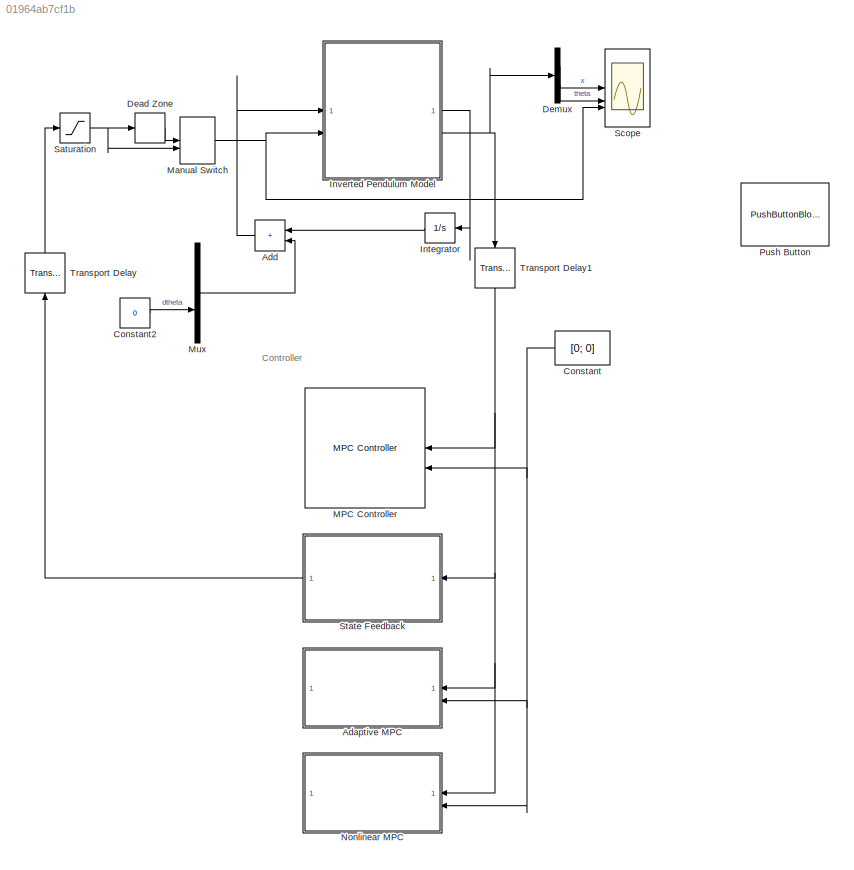
MODEL slx_01964ab7cf1b
KIND model
CONFIG AbsTol = auto
CONFIG EnableMultiTasking = off
CONFIG FixedStep = 1.0e-5
CONFIG MaxStep = auto
CONFIG MinStep = auto
CONFIG RelTol = 1e-3
CONFIG SampleTimeConstraint = Unconstrained
CONFIG SolverName = FixedStepAuto
CONFIG StartTime = 0.0
CONFIG StopTime = 5
BLOCK [ModelReference] Adaptive MPC
  Commented = on
  ModelNameDialog = adaptive_mpc_controller.slx
  ModelReferenceVersion = 1.25
  NameLocation = top
BLOCK [Sum] Add
  IconShape = rectangular
  NameLocation = top
BLOCK [Constant] Constant
  NameLocation = top
  Value = [0; 0]
BLOCK [Constant] Constant2
  Value = 0
BLOCK [DeadZone] Dead Zone
  LowerValue = -p_Dz
  UpperValue = p_Dz
BLOCK [Demux] Demux
  Outputs = 2
BLOCK [Integrator] Integrator
  InitialCondition = [0; 0; 0.01; 0; 0]
  NameLocation = top
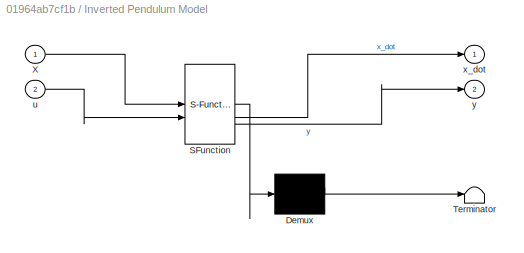
BLOCK [SubSystem] Inverted Pendulum Model
  ErrorFcn = Stateflow.Translate.translate
  PermitHierarchicalResolution = ExplicitOnly
  SFBlockType = MATLAB Function
  TreatAsAtomicUnit = on
BLOCK [Demux] Inverted Pendulum Model/ Demux 
  Outputs = 1
BLOCK [S-Function] Inverted Pendulum Model/ SFunction 
  EnableBusSupport = off
  FunctionName = sf_sfun
  Parameters = p_G,p_Iw,p_Jp,p_Ke,p_Kt,p_La,p_M,p_Ra,p_btheta,p_bx,p_g,p_l,p_m,p_r
  PortCounts = [2 3]
  SFcnIsStateOwnerBlock = off
  SFunctionDeploymentMode = off
  Tag = Stateflow S-Function 2
BLOCK [Terminator] Inverted Pendulum Model/ Terminator 
BLOCK [Inport] Inverted Pendulum Model/X
BLOCK [Inport] Inverted Pendulum Model/u
  Port = 2
BLOCK [Outport] Inverted Pendulum Model/x_dot
BLOCK [Outport] Inverted Pendulum Model/y
  Port = 2
BLOCK [Reference] MPC Controller  REF=mpclib/MPC Controller  (lib defined in mdl_ae329e0e0455)
  Commented = on
  NameLocation = top
  SCDEnableBlockLinearizationSpecification = on
  SourceBlock = mpclib/MPC Controller
  SourceType = MPC
BLOCK [ManualSwitch] Manual Switch
BLOCK [Mux] Mux
  DisplayOption = bar
  Inputs = 5
BLOCK [ModelReference] Nonlinear MPC
  Commented = on
  ModelNameDialog = nonlinear_mpc_controller.slx
  ModelReferenceVersion = 1.7
  NameLocation = top
BLOCK [PushButtonBlock] Push Button
  ButtonText = Push pendulum
  IconOffColor = [0.0, 1.0, 0.0]
  IconOnColor = [0.0, 0.39215686274509803, 0.0]
  OffValue = 0.000000
  OnValue = 0.1
BLOCK [Saturate] Saturation
  LowerLimit = -7.2
  UpperLimit = 7.2
BLOCK [Scope] Scope
  ActiveDisplayYMaximum = 5.9981784502327464
  ActiveDisplayYMinimum = -5.9981784502327464
  DataLoggingDecimation = 1
  DataLoggingSaveFormat = Array
  DataLoggingVariableName = ScopeData2
  Floating = off
  GraphicalSettings = {"Style":{"BackgroundColor":[0.12941176470588237,0.12941176470588237,0.12941176470588237],"AxesColor":[0.07058823529411765,0.07058823529411765,0.07058823529411765],"LabelsColor":[0.8509803921568627,0.8509803921568627,0.8509803921568627],"PreserveColors":false,"Visible":[true,true,true],"LineStyle":["-","-","-"],"LineWidth":[1.5,1.5,1.5],"BarWidth":[0.9,0.9,0.9],"LineColor":["auto","auto","auto"],"...<+2216ch>
  MultipleDisplayCache = [{"MaxYLimMag":5.9981784502327464,"MaxYLimReal":5.9981784502327464,"MinYLimMag":0,"MinYLimReal":-5.9981784502327464,"PlotAsMagnitudePhase":false,"ShowGrid":true,"ShowLegend":true,"Title":"%<SignalLabel>","YLabel":""}]
  NumInputPorts = 3
  ScopeFrameLocation = window
  ShowLegend = on
  Visible = on
  WasSavedAsWebScope = on
  WindowPosition = [0.000000,35.000000,1707.000000,996.000000,]
BLOCK [ModelReference] State Feedback
  ModelNameDialog = state_feedback_controller.slx
  ModelReferenceVersion = 1.194
  NameLocation = top
BLOCK [TransportDelay] Transport Delay
  DelayTime = 0.001
  NameLocation = right
BLOCK [TransportDelay] Transport Delay1
  DelayTime = 0
  NameLocation = left
ANNOTATION (root): Controller
LINE Add:1 -> Inverted Pendulum Model:1
LINE Constant2:1 -> Mux:4
NET Constant:1 -> Adaptive MPC:2, MPC Controller:2, Nonlinear MPC:2
LINE Dead Zone:1 -> Manual Switch:1
LINE Demux:1 -> Scope:1
LINE Demux:2 -> Scope:2
LINE Integrator:1 -> Add:1
LINE Inverted Pendulum Model:1 -> Integrator:1
NET Inverted Pendulum Model:2 -> Demux:1, Transport Delay1:1
NET Manual Switch:1 -> Inverted Pendulum Model:2, Scope:3
LINE Mux:1 -> Add:2
NET Saturation:1 -> Dead Zone:1, Manual Switch:2
LINE State Feedback:1 -> Transport Delay:1
NET Transport Delay1:1 -> Adaptive MPC:1, MPC Controller:1, Nonlinear MPC:1, State Feedback:1
LINE Transport Delay:1 -> Saturation:1
note: NET lines group one-source signal fan-out (src -> all destinations, sorted); 1:1 wires keep LINE
CHART Inverted Pendulum Model states=1 transitions=1
  STATE_LABEL 'eML_blk_kernel()'
  STATE_LABEL 'SCRIPT:\nfunction [x_dot, y] = pendulum(X, u, p_M, p_m, p_g, p_l, p_r, p_Iw, p_G, p_Jp, p_bx, p_btheta, p_Kt, p_Ke, p_Ra, p_La)\n% 台車型倒立振子の状態空間動力学\n% \n% 入力:\n%   X: 状態ベクトル [x; x_dot; theta; theta_dot; i] (5x1)\n%   u: 入力電圧 V (スカラー)\n%   params: パラメータ構造体\n\nparams = [p_M; p_m; p_g; p_l; p_r; p_Iw; p_G; p_Jp; p_bx; p_btheta; p_Kt; p_Ke; p_Ra; p_La];\n\nx_dot = nonlinear_dynamics(X, u, params);\n\ny = [X(1); X(3...<+8ch>'
CHART  states=0 transitions=0
